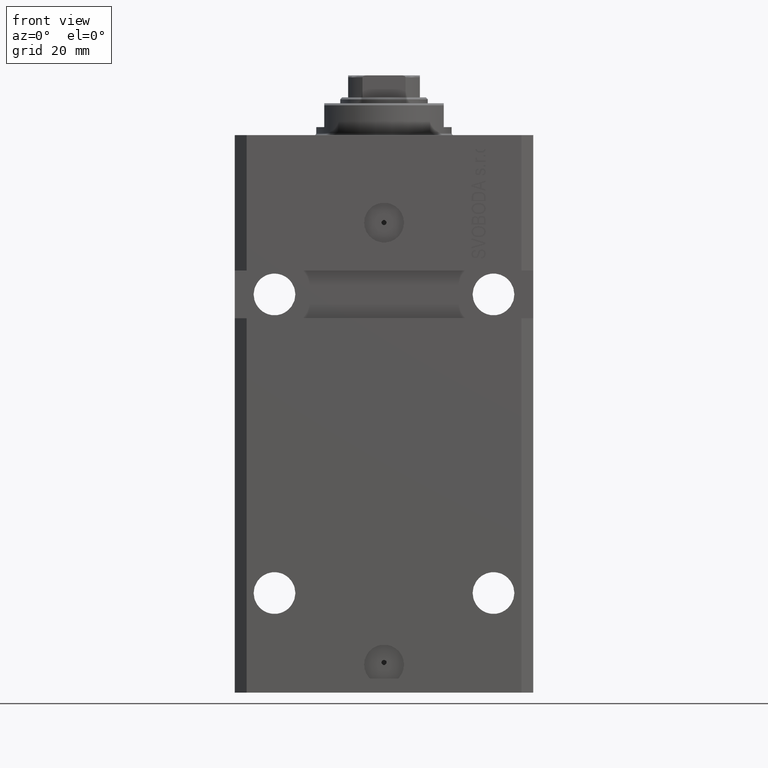
[diagram: clean part render]
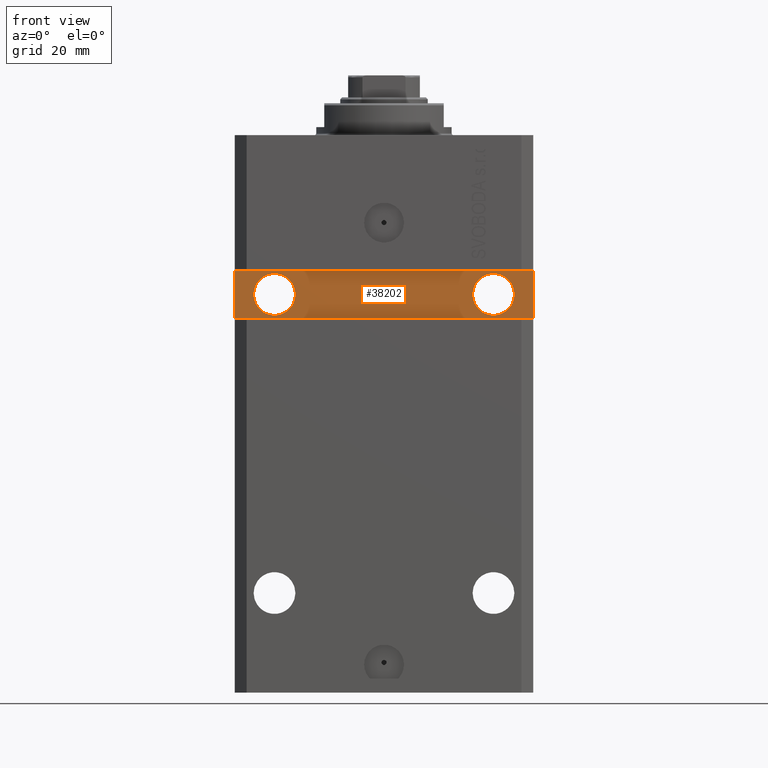
[diagram: same view with one face highlighted and labeled with its STEP entity id]
A machine part, front view. The second image highlights one B-rep face of the part: STEP entity #38202.
In plain terms, the highlighted planar face has unit normal (0, -1, 0).
Its self-contained STEP definition (entity closure, byte-faithful):
#269 = VERTEX_POINT ( 'NONE', #35320 ) ;
#896 = EDGE_CURVE ( 'NONE', #19100, #23818, #2156, .T. ) ;
#1021 = LINE ( 'NONE', #19702, #9115 ) ;
#1662 = LINE ( 'NONE', #5961, #21814 ) ;
#2156 = CIRCLE ( 'NONE', #26639, 5.249999999999997335 ) ;
#4222 = CARTESIAN_POINT ( 'NONE',  ( -22.24999999999999645, -24.50000000000000000, -40.00000000000000711 ) ) ;
#4291 = EDGE_CURVE ( 'NONE', #9452, #37466, #41946, .T. ) ;
#5852 = LINE ( 'NONE', #42011, #31731 ) ;
#5961 = CARTESIAN_POINT ( 'NONE',  ( 37.49999999999999289, -24.49999999999999289, -33.99999999999999289 ) ) ;
#6757 = FACE_OUTER_BOUND ( 'NONE', #38920, .T. ) ;
#7319 = EDGE_LOOP ( 'NONE', ( #45908, #22459 ) ) ;
#7950 = CARTESIAN_POINT ( 'NONE',  ( 2.191435984341280931E-15, -24.49999999999999645, 0.000000000000000000 ) ) ;
#8560 = DIRECTION ( 'NONE',  ( 0.000000000000000000, 0.000000000000000000, 1.000000000000000000 ) ) ;
#9042 = VERTEX_POINT ( 'NONE', #31319 ) ;
#9115 = VECTOR ( 'NONE', #19232, 1000.000000000000000 ) ;
#9452 = VERTEX_POINT ( 'NONE', #37621 ) ;
#9660 = DIRECTION ( 'NONE',  ( 1.101411730780568590E-16, -1.000000000000000000, 0.000000000000000000 ) ) ;
#9818 = DIRECTION ( 'NONE',  ( 1.101411730780568590E-16, -1.000000000000000000, 0.000000000000000000 ) ) ;
#10572 = EDGE_LOOP ( 'NONE', ( #35848, #40142 ) ) ;
#10693 = DIRECTION ( 'NONE',  ( 1.000000000000000000, 0.000000000000000000, 0.000000000000000000 ) ) ;
#11036 = DIRECTION ( 'NONE',  ( 1.000000000000000000, 0.000000000000000000, 0.000000000000000000 ) ) ;
#12288 = CIRCLE ( 'NONE', #39054, 5.249999999999994671 ) ;
#13247 = DIRECTION ( 'NONE',  ( 1.000000000000000000, 0.000000000000000000, 0.000000000000000000 ) ) ;
#14823 = AXIS2_PLACEMENT_3D ( 'NONE', #38400, #9660, #13247 ) ;
#15501 = ORIENTED_EDGE ( 'NONE', *, *, #21387, .T. ) ;
#16951 = CARTESIAN_POINT ( 'NONE',  ( 22.25000000000001421, -24.49999999999999289, -40.00000000000000000 ) ) ;
#18455 = DIRECTION ( 'NONE',  ( 1.171720209325604191E-16, -1.000000000000000000, 0.000000000000000000 ) ) ;
#18905 = CARTESIAN_POINT ( 'NONE',  ( 27.50000000000000711, -24.49999999999999289, -40.00000000000000000 ) ) ;
#18950 = DIRECTION ( 'NONE',  ( 9.251858538542972814E-17, -1.000000000000000000, 0.000000000000000000 ) ) ;
#19100 = VERTEX_POINT ( 'NONE', #4222 ) ;
#19232 = DIRECTION ( 'NONE',  ( 1.000000000000000000, 9.251858538542972814E-17, 9.251858538542972814E-17 ) ) ;
#19530 = EDGE_CURVE ( 'NONE', #23818, #19100, #43890, .T. ) ;
#19702 = CARTESIAN_POINT ( 'NONE',  ( -37.50000000000000000, -24.50000000000000000, -46.00000000000000000 ) ) ;
#19928 = ORIENTED_EDGE ( 'NONE', *, *, #35054, .T. ) ;
#20038 = CARTESIAN_POINT ( 'NONE',  ( 37.49999999999999289, -24.49999999999999289, -45.99999999999999289 ) ) ;
#21387 = EDGE_CURVE ( 'NONE', #31663, #9042, #5852, .T. ) ;
#21417 = AXIS2_PLACEMENT_3D ( 'NONE', #18905, #18455, #11036 ) ;
#21814 = VECTOR ( 'NONE', #31834, 1000.000000000000000 ) ;
#22459 = ORIENTED_EDGE ( 'NONE', *, *, #19530, .F. ) ;
#23642 = VECTOR ( 'NONE', #8560, 1000.000000000000000 ) ;
#23818 = VERTEX_POINT ( 'NONE', #31331 ) ;
#24967 = FACE_BOUND ( 'NONE', #10572, .T. ) ;
#25775 = EDGE_CURVE ( 'NONE', #32071, #31663, #1662, .T. ) ;
#26639 = AXIS2_PLACEMENT_3D ( 'NONE', #46913, #9818, #32083 ) ;
#29373 = CARTESIAN_POINT ( 'NONE',  ( 27.50000000000000711, -24.49999999999999289, -40.00000000000000000 ) ) ;
#29593 = CARTESIAN_POINT ( 'NONE',  ( -37.50000000000000000, -24.50000000000000000, -34.00000000000000000 ) ) ;
#30212 = PLANE ( 'NONE',  #33717 ) ;
#31319 = CARTESIAN_POINT ( 'NONE',  ( -37.50000000000000000, -24.50000000000000000, -46.00000000000000000 ) ) ;
#31331 = CARTESIAN_POINT ( 'NONE',  ( -32.74999999999999289, -24.50000000000000000, -40.00000000000000711 ) ) ;
#31663 = VERTEX_POINT ( 'NONE', #29593 ) ;
#31731 = VECTOR ( 'NONE', #35551, 1000.000000000000000 ) ;
#31834 = DIRECTION ( 'NONE',  ( -1.000000000000000000, -9.251858538542972814E-17, -9.251858538542972814E-17 ) ) ;
#32071 = VERTEX_POINT ( 'NONE', #38122 ) ;
#32083 = DIRECTION ( 'NONE',  ( 1.000000000000000000, 0.000000000000000000, 0.000000000000000000 ) ) ;
#33717 = AXIS2_PLACEMENT_3D ( 'NONE', #7950, #18950, #40739 ) ;
#34684 = EDGE_CURVE ( 'NONE', #269, #32071, #44928, .T. ) ;
#35054 = EDGE_CURVE ( 'NONE', #9042, #269, #1021, .T. ) ;
#35320 = CARTESIAN_POINT ( 'NONE',  ( 37.49999999999999289, -24.49999999999999289, -45.99999999999999289 ) ) ;
#35551 = DIRECTION ( 'NONE',  ( 0.000000000000000000, 0.000000000000000000, -1.000000000000000000 ) ) ;
#35848 = ORIENTED_EDGE ( 'NONE', *, *, #4291, .F. ) ;
#36121 = ORIENTED_EDGE ( 'NONE', *, *, #25775, .T. ) ;
#37466 = VERTEX_POINT ( 'NONE', #16951 ) ;
#37621 = CARTESIAN_POINT ( 'NONE',  ( 32.75000000000000000, -24.49999999999999289, -40.00000000000000000 ) ) ;
#38122 = CARTESIAN_POINT ( 'NONE',  ( 37.49999999999999289, -24.49999999999999289, -33.99999999999999289 ) ) ;
#38202 = ADVANCED_FACE ( 'NONE', ( #24967, #39567, #6757 ), #30212, .T. ) ;
#38400 = CARTESIAN_POINT ( 'NONE',  ( -27.49999999999999289, -24.50000000000000000, -40.00000000000000711 ) ) ;
#38920 = EDGE_LOOP ( 'NONE', ( #19928, #42781, #36121, #15501 ) ) ;
#39054 = AXIS2_PLACEMENT_3D ( 'NONE', #29373, #46842, #10693 ) ;
#39567 = FACE_BOUND ( 'NONE', #7319, .T. ) ;
#40142 = ORIENTED_EDGE ( 'NONE', *, *, #41830, .F. ) ;
#40739 = DIRECTION ( 'NONE',  ( 1.000000000000000000, 9.251858538542972814E-17, 0.000000000000000000 ) ) ;
#41830 = EDGE_CURVE ( 'NONE', #37466, #9452, #12288, .T. ) ;
#41946 = CIRCLE ( 'NONE', #21417, 5.249999999999994671 ) ;
#42011 = CARTESIAN_POINT ( 'NONE',  ( -37.50000000000000000, -24.50000000000000000, -34.00000000000000000 ) ) ;
#42781 = ORIENTED_EDGE ( 'NONE', *, *, #34684, .T. ) ;
#43890 = CIRCLE ( 'NONE', #14823, 5.249999999999997335 ) ;
#44928 = LINE ( 'NONE', #20038, #23642 ) ;
#45908 = ORIENTED_EDGE ( 'NONE', *, *, #896, .F. ) ;
#46842 = DIRECTION ( 'NONE',  ( 1.171720209325604191E-16, -1.000000000000000000, 0.000000000000000000 ) ) ;
#46913 = CARTESIAN_POINT ( 'NONE',  ( -27.49999999999999289, -24.50000000000000000, -40.00000000000000711 ) ) ;